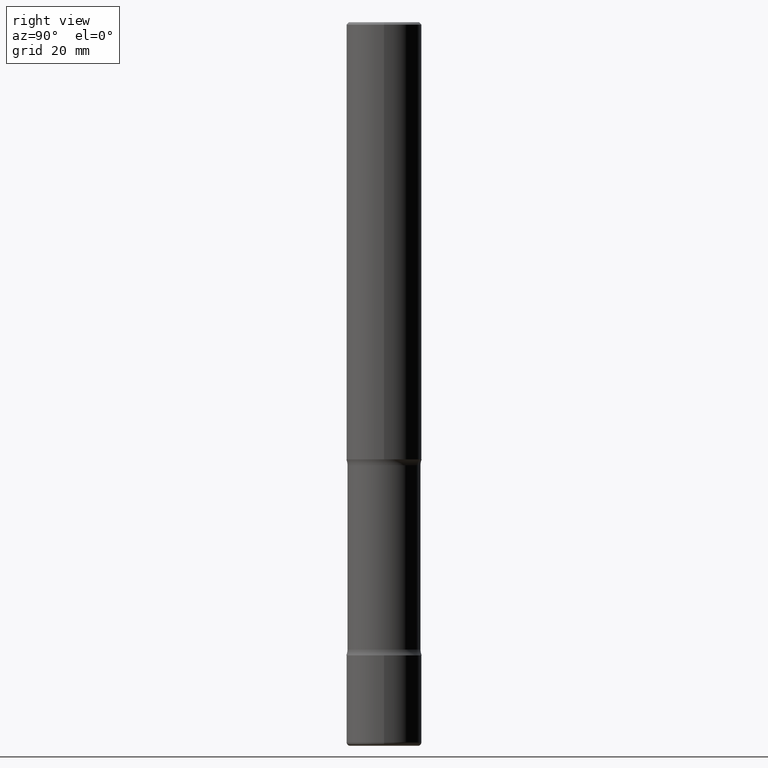
[diagram: clean part render]
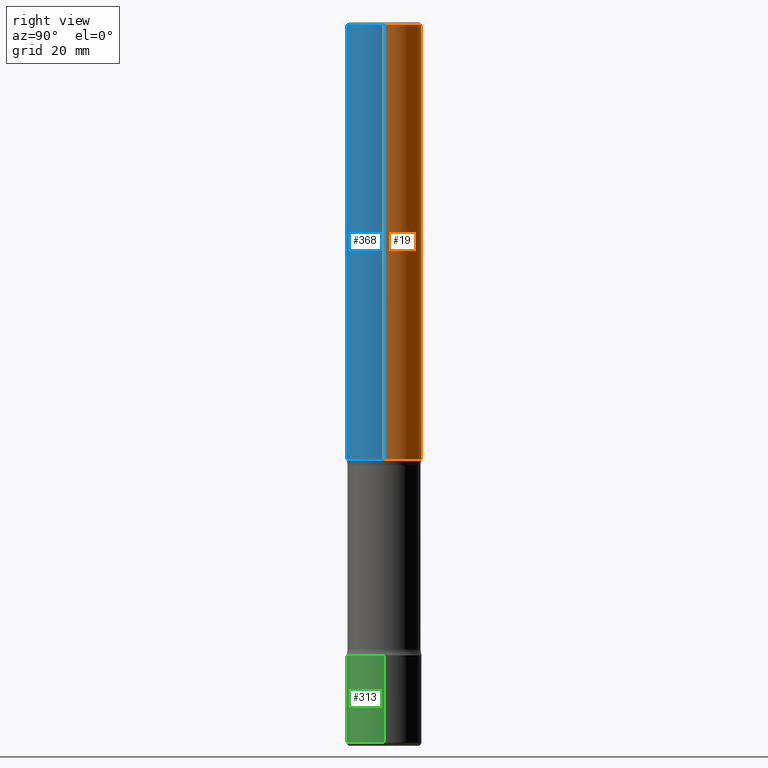
[diagram: same view with three faces highlighted in distinct colors, each labeled with its STEP entity id]
A machine part, right view with three faces highlighted in distinct colors.
Their STEP definitions:

[orange] entity #19 — the highlighted cylindrical surface (partial cylindrical patch) has radius 7.9375 mm, axis along (-0, 0, 1).
#19 = ADVANCED_FACE ( 'NONE', ( #165 ), #74, .T. ) ;
#26 = EDGE_CURVE ( 'NONE', #429, #349, #83, .T. ) ;
#30 = VECTOR ( 'NONE', #140, 39.37007874015748143 ) ;
#56 = VECTOR ( 'NONE', #185, 39.37007874015748143 ) ;
#70 = EDGE_CURVE ( 'NONE', #525, #507, #130, .T. ) ;
#71 = DIRECTION ( 'NONE',  ( -2.445468806185136597E-29, 3.491481338843145583E-15, 1.000000000000000000 ) ) ;
#74 = CYLINDRICAL_SURFACE ( 'NONE', #453, 0.3125000000000007216 ) ;
#81 = EDGE_CURVE ( 'NONE', #525, #429, #524, .T. ) ;
#83 = CIRCLE ( 'NONE', #276, 0.3125000000000005551 ) ;
#130 = CIRCLE ( 'NONE', #320, 0.3125000000000008327 ) ;
#140 = DIRECTION ( 'NONE',  ( -2.445468806185136877E-29, 3.491481338843145188E-15, 1.000000000000000000 ) ) ;
#165 = FACE_OUTER_BOUND ( 'NONE', #321, .T. ) ;
#174 = ORIENTED_EDGE ( 'NONE', *, *, #411, .T. ) ;
#185 = DIRECTION ( 'NONE',  ( -2.445468806185136877E-29, 3.491481338843145188E-15, 1.000000000000000000 ) ) ;
#240 = ORIENTED_EDGE ( 'NONE', *, *, #70, .T. ) ;
#245 = CARTESIAN_POINT ( 'NONE',  ( 0.3125000000000005551, -2.213735251080470461E-15, -0.02000000000000000042 ) ) ;
#254 = CARTESIAN_POINT ( 'NONE',  ( -0.3125000000000007216, 2.220446049250318208E-15, -1.537167215704661595E-29 ) ) ;
#261 = DIRECTION ( 'NONE',  ( 1.000000000000000000, -6.982962677686265922E-15, 4.876176775795935793E-29 ) ) ;
#272 = CARTESIAN_POINT ( 'NONE',  ( 8.864824422421122405E-29, -1.265661985330640574E-14, -3.625000000000000888 ) ) ;
#276 = AXIS2_PLACEMENT_3D ( 'NONE', #384, #506, #545 ) ;
#320 = AXIS2_PLACEMENT_3D ( 'NONE', #272, #352, #523 ) ;
#321 = EDGE_LOOP ( 'NONE', ( #240, #174, #419, #351 ) ) ;
#336 = LINE ( 'NONE', #254, #56 ) ;
#346 = CARTESIAN_POINT ( 'NONE',  ( 0.000000000000000000, 0.000000000000000000, 0.000000000000000000 ) ) ;
#349 = VERTEX_POINT ( 'NONE', #512 ) ;
#351 = ORIENTED_EDGE ( 'NONE', *, *, #81, .F. ) ;
#352 = DIRECTION ( 'NONE',  ( -2.445468806185136597E-29, 3.491481338843145583E-15, 1.000000000000000000 ) ) ;
#359 = CARTESIAN_POINT ( 'NONE',  ( 0.3125000000000007216, -2.182175836776963080E-15, 1.523805242436233439E-29 ) ) ;
#384 = CARTESIAN_POINT ( 'NONE',  ( 4.890937612370273159E-31, -6.982962677686291609E-17, -0.02000000000000000042 ) ) ;
#396 = CARTESIAN_POINT ( 'NONE',  ( -0.3125000000000008327, -4.142778690791312763E-15, -3.625000000000000888 ) ) ;
#411 = EDGE_CURVE ( 'NONE', #507, #349, #336, .T. ) ;
#419 = ORIENTED_EDGE ( 'NONE', *, *, #26, .F. ) ;
#429 = VERTEX_POINT ( 'NONE', #245 ) ;
#453 = AXIS2_PLACEMENT_3D ( 'NONE', #346, #71, #261 ) ;
#506 = DIRECTION ( 'NONE',  ( -2.445468806185136597E-29, 3.491481338843145583E-15, 1.000000000000000000 ) ) ;
#507 = VERTEX_POINT ( 'NONE', #396 ) ;
#512 = CARTESIAN_POINT ( 'NONE',  ( -0.3125000000000005551, 2.112346210000099388E-15, -0.02000000000000000042 ) ) ;
#523 = DIRECTION ( 'NONE',  ( 1.000000000000000000, -6.982962677686269866E-15, 0.000000000000000000 ) ) ;
#524 = LINE ( 'NONE', #359, #30 ) ;
#525 = VERTEX_POINT ( 'NONE', #533 ) ;
#533 = CARTESIAN_POINT ( 'NONE',  ( 0.3125000000000008327, -1.483879569008337040E-14, -3.625000000000000888 ) ) ;
#545 = DIRECTION ( 'NONE',  ( 1.000000000000000000, -6.982962677686268288E-15, 0.000000000000000000 ) ) ;

[blue] entity #368 — the highlighted cylindrical surface (partial cylindrical patch) has radius 7.9375 mm, axis along (-0, 0, 1).
#10 = DIRECTION ( 'NONE',  ( -2.445468806185136597E-29, 3.491481338843145583E-15, 1.000000000000000000 ) ) ;
#30 = VECTOR ( 'NONE', #140, 39.37007874015748143 ) ;
#56 = VECTOR ( 'NONE', #185, 39.37007874015748143 ) ;
#81 = EDGE_CURVE ( 'NONE', #525, #429, #524, .T. ) ;
#86 = DIRECTION ( 'NONE',  ( 1.000000000000000000, -6.982962677686269866E-15, 0.000000000000000000 ) ) ;
#94 = EDGE_CURVE ( 'NONE', #507, #525, #360, .T. ) ;
#140 = DIRECTION ( 'NONE',  ( -2.445468806185136877E-29, 3.491481338843145188E-15, 1.000000000000000000 ) ) ;
#185 = DIRECTION ( 'NONE',  ( -2.445468806185136877E-29, 3.491481338843145188E-15, 1.000000000000000000 ) ) ;
#187 = ORIENTED_EDGE ( 'NONE', *, *, #468, .F. ) ;
#210 = DIRECTION ( 'NONE',  ( 1.000000000000000000, -6.982962677686265922E-15, 4.876176775795935793E-29 ) ) ;
#226 = CARTESIAN_POINT ( 'NONE',  ( 8.864824422421122405E-29, -1.265661985330640574E-14, -3.625000000000000888 ) ) ;
#245 = CARTESIAN_POINT ( 'NONE',  ( 0.3125000000000005551, -2.213735251080470461E-15, -0.02000000000000000042 ) ) ;
#254 = CARTESIAN_POINT ( 'NONE',  ( -0.3125000000000007216, 2.220446049250318208E-15, -1.537167215704661595E-29 ) ) ;
#274 = ORIENTED_EDGE ( 'NONE', *, *, #94, .T. ) ;
#292 = ORIENTED_EDGE ( 'NONE', *, *, #81, .T. ) ;
#316 = ORIENTED_EDGE ( 'NONE', *, *, #411, .F. ) ;
#336 = LINE ( 'NONE', #254, #56 ) ;
#349 = VERTEX_POINT ( 'NONE', #512 ) ;
#359 = CARTESIAN_POINT ( 'NONE',  ( 0.3125000000000007216, -2.182175836776963080E-15, 1.523805242436233439E-29 ) ) ;
#360 = CIRCLE ( 'NONE', #526, 0.3125000000000008327 ) ;
#368 = ADVANCED_FACE ( 'NONE', ( #505 ), #460, .T. ) ;
#382 = CARTESIAN_POINT ( 'NONE',  ( 0.000000000000000000, 0.000000000000000000, 0.000000000000000000 ) ) ;
#396 = CARTESIAN_POINT ( 'NONE',  ( -0.3125000000000008327, -4.142778690791312763E-15, -3.625000000000000888 ) ) ;
#397 = CARTESIAN_POINT ( 'NONE',  ( 4.890937612370273159E-31, -6.982962677686291609E-17, -0.02000000000000000042 ) ) ;
#411 = EDGE_CURVE ( 'NONE', #507, #349, #336, .T. ) ;
#429 = VERTEX_POINT ( 'NONE', #245 ) ;
#448 = AXIS2_PLACEMENT_3D ( 'NONE', #382, #462, #210 ) ;
#452 = DIRECTION ( 'NONE',  ( 1.000000000000000000, -6.982962677686268288E-15, 0.000000000000000000 ) ) ;
#460 = CYLINDRICAL_SURFACE ( 'NONE', #448, 0.3125000000000007216 ) ;
#462 = DIRECTION ( 'NONE',  ( -2.445468806185136597E-29, 3.491481338843145583E-15, 1.000000000000000000 ) ) ;
#468 = EDGE_CURVE ( 'NONE', #349, #429, #486, .T. ) ;
#474 = DIRECTION ( 'NONE',  ( -2.445468806185136597E-29, 3.491481338843145583E-15, 1.000000000000000000 ) ) ;
#486 = CIRCLE ( 'NONE', #551, 0.3125000000000005551 ) ;
#505 = FACE_OUTER_BOUND ( 'NONE', #535, .T. ) ;
#507 = VERTEX_POINT ( 'NONE', #396 ) ;
#512 = CARTESIAN_POINT ( 'NONE',  ( -0.3125000000000005551, 2.112346210000099388E-15, -0.02000000000000000042 ) ) ;
#524 = LINE ( 'NONE', #359, #30 ) ;
#525 = VERTEX_POINT ( 'NONE', #533 ) ;
#526 = AXIS2_PLACEMENT_3D ( 'NONE', #226, #474, #86 ) ;
#533 = CARTESIAN_POINT ( 'NONE',  ( 0.3125000000000008327, -1.483879569008337040E-14, -3.625000000000000888 ) ) ;
#535 = EDGE_LOOP ( 'NONE', ( #316, #274, #292, #187 ) ) ;
#551 = AXIS2_PLACEMENT_3D ( 'NONE', #397, #10, #452 ) ;

[green] entity #313 — the highlighted cylindrical surface (partial cylindrical patch) has radius 7.9375 mm, axis along (-0, 0, 1).
#8 = DIRECTION ( 'NONE',  ( -2.445468806185136877E-29, 3.491481338843145188E-15, 1.000000000000000000 ) ) ;
#9 = CARTESIAN_POINT ( 'NONE',  ( 1.283871123247196938E-28, -1.833027702892651638E-14, -5.250000000000000888 ) ) ;
#28 = CARTESIAN_POINT ( 'NONE',  ( -0.3125000000000001665, 2.220446049250314264E-15, -1.537167215704658792E-29 ) ) ;
#47 = DIRECTION ( 'NONE',  ( -2.445468806185136597E-29, 3.491481338843145583E-15, 1.000000000000000000 ) ) ;
#73 = EDGE_CURVE ( 'NONE', #149, #459, #178, .T. ) ;
#75 = DIRECTION ( 'NONE',  ( 1.000000000000000000, -6.982962677686271444E-15, 0.000000000000000000 ) ) ;
#79 = CARTESIAN_POINT ( 'NONE',  ( 0.3125000000000002220, -2.302631942967053926E-14, -5.969999999999999751 ) ) ;
#87 = AXIS2_PLACEMENT_3D ( 'NONE', #438, #47, #358 ) ;
#89 = EDGE_LOOP ( 'NONE', ( #291, #522, #182, #235 ) ) ;
#95 = VECTOR ( 'NONE', #543, 39.37007874015748143 ) ;
#99 = CYLINDRICAL_SURFACE ( 'NONE', #87, 0.3125000000000001665 ) ;
#143 = VERTEX_POINT ( 'NONE', #403 ) ;
#149 = VERTEX_POINT ( 'NONE', #79 ) ;
#178 = LINE ( 'NONE', #355, #447 ) ;
#182 = ORIENTED_EDGE ( 'NONE', *, *, #73, .T. ) ;
#198 = VERTEX_POINT ( 'NONE', #218 ) ;
#203 = LINE ( 'NONE', #28, #95 ) ;
#218 = CARTESIAN_POINT ( 'NONE',  ( -0.3125000000000001665, -1.736676426165973636E-14, -5.250000000000000888 ) ) ;
#231 = EDGE_CURVE ( 'NONE', #143, #198, #203, .T. ) ;
#235 = ORIENTED_EDGE ( 'NONE', *, *, #270, .F. ) ;
#239 = CIRCLE ( 'NONE', #488, 0.3125000000000001665 ) ;
#257 = EDGE_CURVE ( 'NONE', #143, #149, #407, .T. ) ;
#270 = EDGE_CURVE ( 'NONE', #198, #459, #239, .T. ) ;
#291 = ORIENTED_EDGE ( 'NONE', *, *, #231, .F. ) ;
#296 = CARTESIAN_POINT ( 'NONE',  ( 1.459944877292526494E-28, -2.084414359289357934E-14, -5.969999999999999751 ) ) ;
#313 = ADVANCED_FACE ( 'NONE', ( #502 ), #99, .T. ) ;
#314 = CARTESIAN_POINT ( 'NONE',  ( 0.3125000000000001665, -2.051245286570347946E-14, -5.250000000000000888 ) ) ;
#329 = AXIS2_PLACEMENT_3D ( 'NONE', #296, #513, #388 ) ;
#355 = CARTESIAN_POINT ( 'NONE',  ( 0.3125000000000001665, -2.182175836776959530E-15, 1.523805242436230636E-29 ) ) ;
#358 = DIRECTION ( 'NONE',  ( 1.000000000000000000, -6.982962677686266711E-15, 4.876176775795935232E-29 ) ) ;
#388 = DIRECTION ( 'NONE',  ( 1.000000000000000000, -6.982962677686261977E-15, 0.000000000000000000 ) ) ;
#403 = CARTESIAN_POINT ( 'NONE',  ( -0.3125000000000002220, -1.862369754364326626E-14, -5.969999999999999751 ) ) ;
#407 = CIRCLE ( 'NONE', #329, 0.3125000000000000555 ) ;
#409 = DIRECTION ( 'NONE',  ( -2.445468806185136597E-29, 3.491481338843145583E-15, 1.000000000000000000 ) ) ;
#438 = CARTESIAN_POINT ( 'NONE',  ( 0.000000000000000000, 0.000000000000000000, 0.000000000000000000 ) ) ;
#447 = VECTOR ( 'NONE', #8, 39.37007874015748143 ) ;
#459 = VERTEX_POINT ( 'NONE', #314 ) ;
#488 = AXIS2_PLACEMENT_3D ( 'NONE', #9, #409, #75 ) ;
#502 = FACE_OUTER_BOUND ( 'NONE', #89, .T. ) ;
#513 = DIRECTION ( 'NONE',  ( -2.445468806185136597E-29, 3.491481338843145583E-15, 1.000000000000000000 ) ) ;
#522 = ORIENTED_EDGE ( 'NONE', *, *, #257, .T. ) ;
#543 = DIRECTION ( 'NONE',  ( -2.445468806185136877E-29, 3.491481338843145188E-15, 1.000000000000000000 ) ) ;